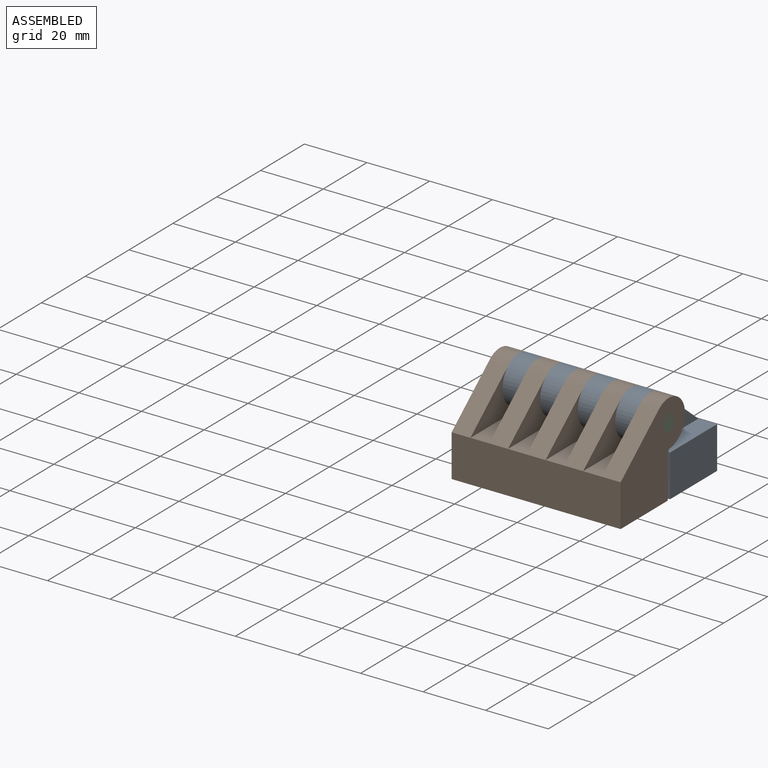
[diagram: assembled view]
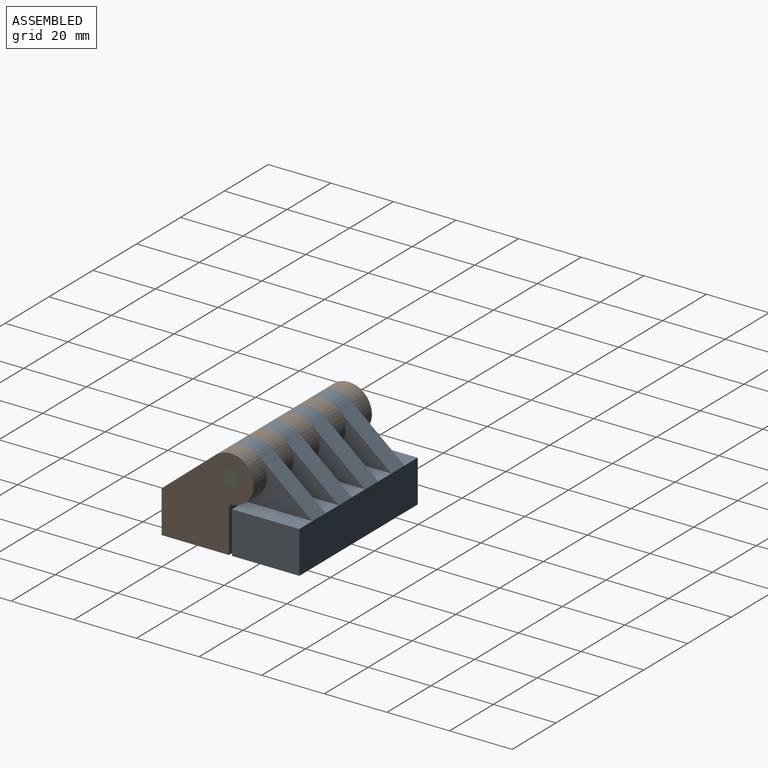
[diagram: assembled view, second angle]
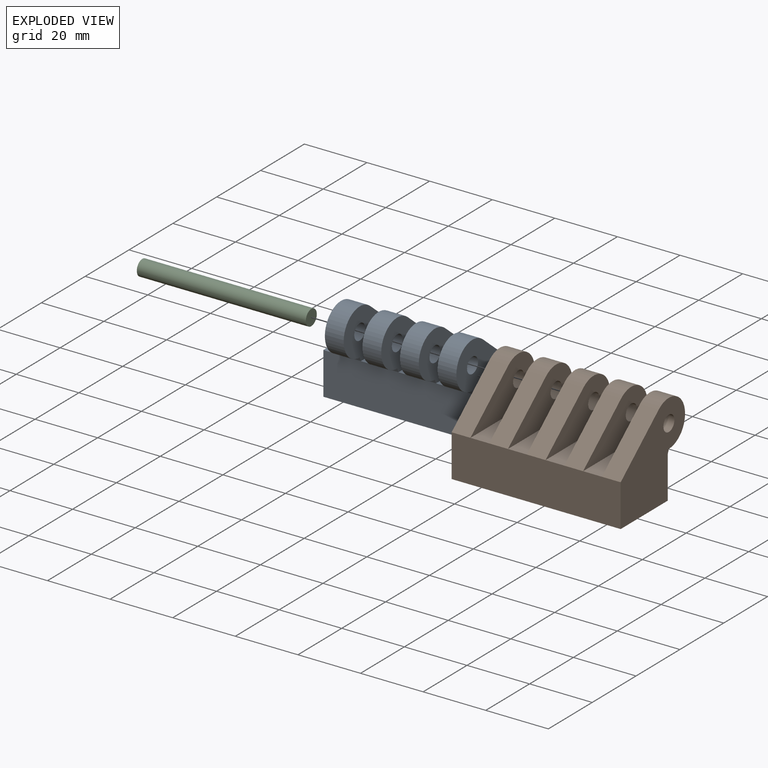
[diagram: exploded view]
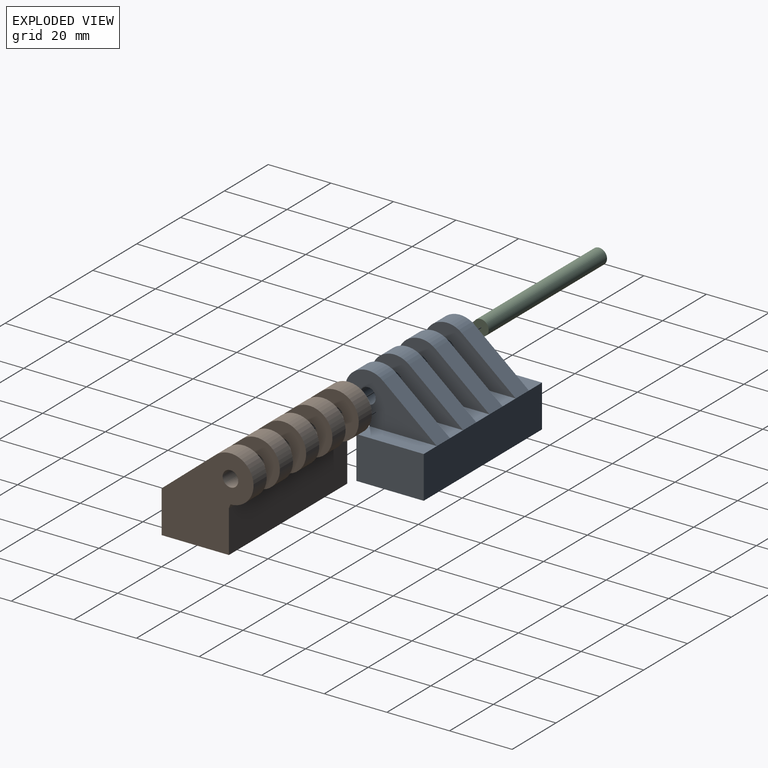
[diagram: exploded view, second angle]
ASSEMBLY  parts=3 mates=2
PART A: 38 faces, bbox 54x29.4x29.5 mm
  f0: plane 21.5x6mm, normal (0,0,1), area 129mm2, adj f5,f7,f26,f33
  f1: plane 21.5x6mm, normal (0,0,1), area 129mm2, adj f5,f7,f20,f27
  f2: plane 21.5x6mm, normal (0,0,1), area 129mm2, adj f5,f7,f14,f21
  f3: plane 21.5x6mm, normal (0,0,1), area 129mm2, adj f5,f6,f7,f15
  f4: plane 21.5x13.5mm, normal (-1,0,0), area 290.2mm2, adj f5,f7,f8,f9
  f5: plane 54x13.5mm, normal (0,-1,0), area 729mm2, adj f0,f1,f2,f3,f4,f6,f8,f9
  f6: plane 21.5x13.5mm, normal (1,0,0), area 290.2mm2, adj f3,f5,f7,f9
  f7: plane 54x13.5mm, normal (0,1,0), area 729mm2, adj f0,f1,f2,f3,f4,f6,f8,f9
  f8: plane 21.5x6mm, normal (0,0,1), area 129mm2, adj f4,f5,f7,f32
  f9: plane 54x21.5mm, normal (0,0,-1), area 1118.5mm2, adj f4,f5,f6,f7,f34,f36
  f10: plane 6x1.26mm, normal (0,-0.93,-0.37), area 8.1mm2, adj f5,f12,f14,f15
  f11: plane 17.3x14.31mm, normal (0,0.64,0.77), area 134.7mm2, adj f7,f12,f14,f15
  f12: cylinder r=7.38mm len=14.75mm, axis (1,0,0), area 169.6mm2, adj f10,f11,f14,f15
  f13: cylinder r=2.5mm len=6mm, axis (1,0,0), area 94.2mm2, adj f14,f15
  f14: plane 29.38x16.01mm, normal (-1,0,0), area 262mm2, adj f2,f10,f11,f12,f13
  f15: plane 29.38x16.01mm, normal (1,0,0), area 262mm2, adj f3,f10,f11,f12,f13
  f16: plane 6x1.26mm, normal (0,-0.93,-0.37), area 8.1mm2, adj f5,f18,f20,f21
  f17: plane 17.3x14.31mm, normal (0,0.64,0.77), area 134.7mm2, adj f7,f18,f20,f21
  f18: cylinder r=7.38mm len=14.75mm, axis (1,0,0), area 169.6mm2, adj f16,f17,f20,f21
  f19: cylinder r=2.5mm len=6mm, axis (1,0,0), area 94.2mm2, adj f20,f21
  f20: plane 29.38x16.01mm, normal (-1,0,0), area 262mm2, adj f1,f16,f17,f18,f19
  f21: plane 29.38x16.01mm, normal (1,0,0), area 262mm2, adj f2,f16,f17,f18,f19
  f22: plane 6x1.26mm, normal (0,-0.93,-0.37), area 8.1mm2, adj f5,f24,f26,f27
  f23: plane 17.3x14.31mm, normal (0,0.64,0.77), area 134.7mm2, adj f7,f24,f26,f27
  f24: cylinder r=7.38mm len=14.75mm, axis (1,0,0), area 169.6mm2, adj f22,f23,f26,f27
  f25: cylinder r=2.5mm len=6mm, axis (1,0,0), area 94.2mm2, adj f26,f27
  f26: plane 29.38x16.01mm, normal (-1,0,0), area 262mm2, adj f0,f22,f23,f24,f25
  f27: plane 29.38x16.01mm, normal (1,0,0), area 262mm2, adj f1,f22,f23,f24,f25
  f28: plane 6x1.26mm, normal (0,-0.93,-0.37), area 8.1mm2, adj f5,f30,f32,f33
  f29: plane 17.3x14.31mm, normal (0,0.64,0.77), area 134.7mm2, adj f7,f30,f32,f33
  f30: cylinder r=7.38mm len=14.75mm, axis (1,0,0), area 169.6mm2, adj f28,f29,f32,f33
  f31: cylinder r=2.5mm len=6mm, axis (1,0,0), area 94.2mm2, adj f32,f33
  f32: plane 29.38x16.01mm, normal (-1,0,0), area 262mm2, adj f8,f28,f29,f30,f31
  f33: plane 29.38x16.01mm, normal (1,0,0), area 262mm2, adj f0,f28,f29,f30,f31
  f34: cylinder r=2.6mm len=10mm, axis (0,0,-1), area 163.4mm2, adj f9,f35
  f35: plane 5.2x5.2mm, normal (0,0,-1), area 21.2mm2, adj f34
  f36: cylinder r=2.6mm len=10mm, axis (0,0,-1), area 163.4mm2, adj f9,f37
  f37: plane 5.2x5.2mm, normal (0,0,-1), area 21.2mm2, adj f36
PART B: 37 faces, bbox 54x29.4x29.5 mm
  f0: plane 21.5x6mm, normal (0,0,1), area 129mm2, adj f5,f7,f30,f36
  f1: plane 21.5x6mm, normal (0,0,1), area 129mm2, adj f5,f7,f24,f31
  f2: plane 21.5x6mm, normal (0,0,1), area 129mm2, adj f5,f7,f18,f25
  f3: plane 21.5x6mm, normal (0,0,1), area 129mm2, adj f5,f7,f13,f19
  f4: plane 29.51x29.38mm, normal (-1,0,0), area 552.3mm2, adj f5,f7,f8,f32,f33,f34,f35
  f5: plane 54x13.5mm, normal (0,-1,0), area 729mm2, adj f0,f1,f2,f3,f4,f6,f8,f9
  f6: plane 29.51x29.38mm, normal (1,0,0), area 552.3mm2, adj f5,f7,f8,f9,f10,f11,f12
  f7: plane 54x13.5mm, normal (0,1,0), area 729mm2, adj f0,f1,f2,f3,f4,f6,f8,f10
  f8: plane 54x21.5mm, normal (0,0,-1), area 1161mm2, adj f4,f5,f6,f7
  f9: plane 6x1.26mm, normal (0,-0.93,-0.37), area 8.1mm2, adj f5,f6,f11,f13
  f10: plane 17.3x14.31mm, normal (0,0.64,0.77), area 134.7mm2, adj f6,f7,f11,f13
  f11: cylinder r=7.38mm len=14.75mm, axis (1,0,0), area 169.6mm2, adj f6,f9,f10,f13
  f12: cylinder r=2.5mm len=6mm, axis (1,0,0), area 94.2mm2, adj f6,f13
  f13: plane 29.38x16.01mm, normal (-1,0,0), area 262mm2, adj f3,f9,f10,f11,f12
  f14: plane 6x1.26mm, normal (0,-0.93,-0.37), area 8.1mm2, adj f5,f16,f18,f19
  f15: plane 17.3x14.31mm, normal (0,0.64,0.77), area 134.7mm2, adj f7,f16,f18,f19
  f16: cylinder r=7.38mm len=14.75mm, axis (1,0,0), area 169.6mm2, adj f14,f15,f18,f19
  f17: cylinder r=2.5mm len=6mm, axis (1,0,0), area 94.2mm2, adj f18,f19
  f18: plane 29.38x16.01mm, normal (-1,0,0), area 262mm2, adj f2,f14,f15,f16,f17
  f19: plane 29.38x16.01mm, normal (1,0,0), area 262mm2, adj f3,f14,f15,f16,f17
  f20: plane 6x1.26mm, normal (0,-0.93,-0.37), area 8.1mm2, adj f5,f22,f24,f25
  f21: plane 17.3x14.31mm, normal (0,0.64,0.77), area 134.7mm2, adj f7,f22,f24,f25
  f22: cylinder r=7.38mm len=14.75mm, axis (1,0,0), area 169.6mm2, adj f20,f21,f24,f25
  f23: cylinder r=2.5mm len=6mm, axis (1,0,0), area 94.2mm2, adj f24,f25
  f24: plane 29.38x16.01mm, normal (-1,0,0), area 262mm2, adj f1,f20,f21,f22,f23
  f25: plane 29.38x16.01mm, normal (1,0,0), area 262mm2, adj f2,f20,f21,f22,f23
  f26: plane 6x1.26mm, normal (0,-0.93,-0.37), area 8.1mm2, adj f5,f28,f30,f31
  f27: plane 17.3x14.31mm, normal (0,0.64,0.77), area 134.7mm2, adj f7,f28,f30,f31
  f28: cylinder r=7.38mm len=14.75mm, axis (1,0,0), area 169.6mm2, adj f26,f27,f30,f31
  f29: cylinder r=2.5mm len=6mm, axis (1,0,0), area 94.2mm2, adj f30,f31
  f30: plane 29.38x16.01mm, normal (-1,0,0), area 262mm2, adj f0,f26,f27,f28,f29
  f31: plane 29.38x16.01mm, normal (1,0,0), area 262mm2, adj f1,f26,f27,f28,f29
  f32: plane 6x1.26mm, normal (0,-0.93,-0.37), area 8.1mm2, adj f4,f5,f34,f36
  f33: plane 17.3x14.31mm, normal (0,0.64,0.77), area 134.7mm2, adj f4,f7,f34,f36
  f34: cylinder r=7.38mm len=14.75mm, axis (1,0,0), area 169.6mm2, adj f4,f32,f33,f36
  f35: cylinder r=2.5mm len=6mm, axis (1,0,0), area 94.2mm2, adj f4,f36
  f36: plane 29.38x16.01mm, normal (1,0,0), area 262mm2, adj f0,f32,f33,f34,f35
PART C: 3 faces, bbox 5x54x5 mm
  f0: cylinder r=2.5mm len=54mm, axis (0,1,0), area 848.2mm2, adj f1,f2
  f1: plane 5x5mm, normal (0,-1,0), area 19.6mm2, adj f0
  f2: plane 5x5mm, normal (0,1,0), area 19.6mm2, adj f0
PLACE A t=(-8.04,12.18,-1.88)mm fixed
PLACE B rot(axis=(0,0,1),180deg) t=(45.96,12.18,-1.88)mm
PLACE C rot(axis=(-0.71,-0.71,0),180deg) t=(45.96,12.18,20.25)mm
MATE fastened C.f0 <-> B.f12  axis (1,0,0) through (-8.04,12.18,20.25)mm
MATE revolute A.f12 <-> B.f34  axis (1,0,0) through (39.96,12.18,20.25)mm
